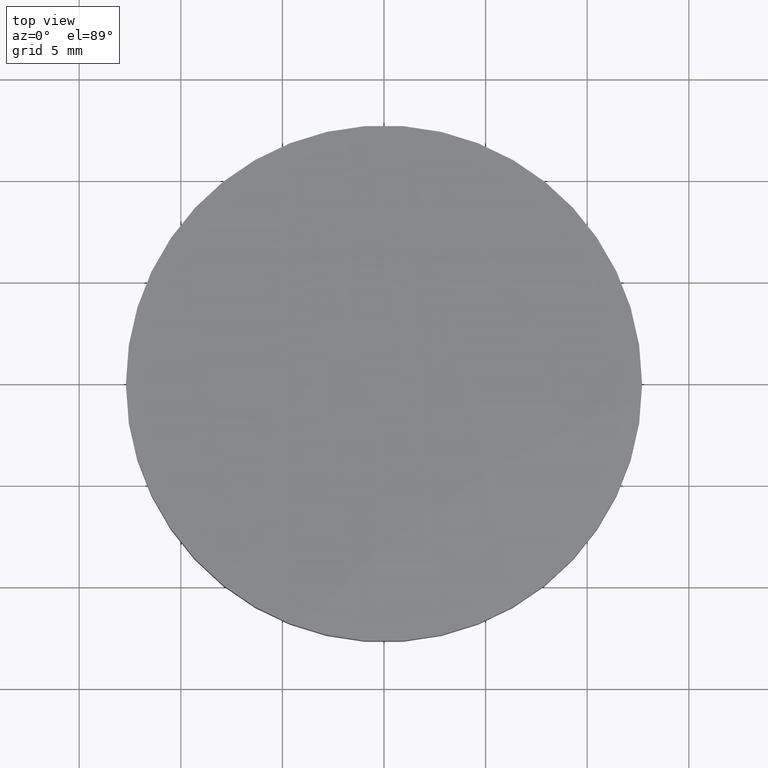
[diagram: clean part render]
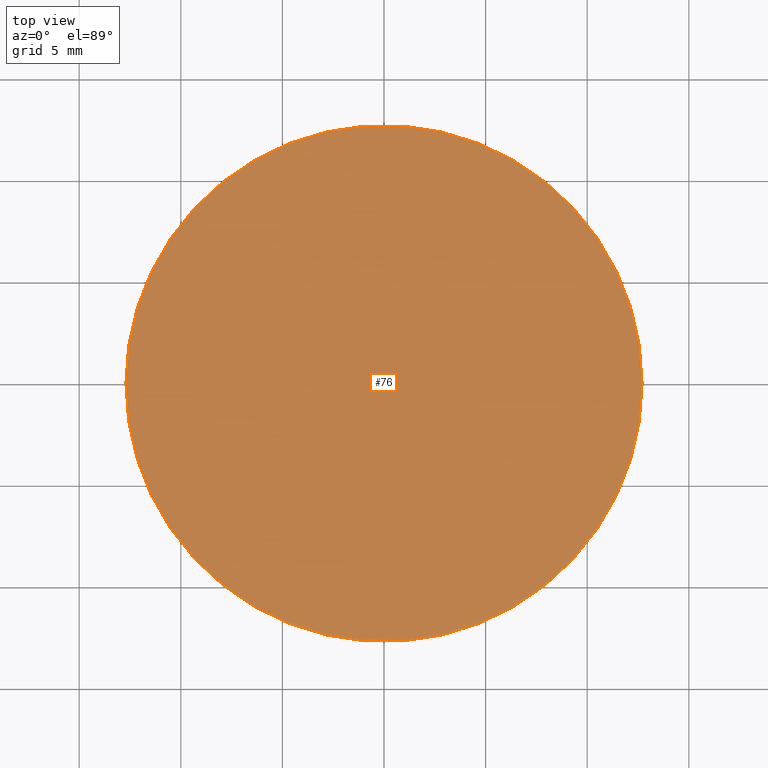
[diagram: same view with one face highlighted and labeled with its STEP entity id]
A machine part, top view. The second image highlights one B-rep face of the part: STEP entity #76.
In plain terms, the highlighted planar face has unit normal (0, 0, 1).
Its self-contained STEP definition (entity closure, byte-faithful):
#5 = DIRECTION ( 'NONE',  ( 0.0000000000000000000, 0.0000000000000000000, 1.000000000000000000 ) ) ;
#16 = CARTESIAN_POINT ( 'NONE',  ( -12.69999999999999900, 0.0000000000000000000, 3.000000000000000000 ) ) ;
#19 = ORIENTED_EDGE ( 'NONE', *, *, #45, .T. ) ;
#21 = AXIS2_PLACEMENT_3D ( 'NONE', #124, #49, #113 ) ;
#22 = CIRCLE ( 'NONE', #29, 12.69999999999999900 ) ;
#26 = DIRECTION ( 'NONE',  ( 0.0000000000000000000, 0.0000000000000000000, 1.000000000000000000 ) ) ;
#29 = AXIS2_PLACEMENT_3D ( 'NONE', #103, #26, #93 ) ;
#39 = VERTEX_POINT ( 'NONE', #16 ) ;
#43 = EDGE_LOOP ( 'NONE', ( #19, #98 ) ) ;
#45 = EDGE_CURVE ( 'NONE', #39, #66, #22, .T. ) ;
#49 = DIRECTION ( 'NONE',  ( 0.0000000000000000000, 0.0000000000000000000, 1.000000000000000000 ) ) ;
#51 = CARTESIAN_POINT ( 'NONE',  ( 0.0000000000000000000, 0.0000000000000000000, 3.000000000000000000 ) ) ;
#56 = AXIS2_PLACEMENT_3D ( 'NONE', #51, #5, #72 ) ;
#57 = EDGE_CURVE ( 'NONE', #66, #39, #99, .T. ) ;
#65 = FACE_OUTER_BOUND ( 'NONE', #43, .T. ) ;
#66 = VERTEX_POINT ( 'NONE', #73 ) ;
#72 = DIRECTION ( 'NONE',  ( 1.000000000000000000, 0.0000000000000000000, -0.0000000000000000000 ) ) ;
#73 = CARTESIAN_POINT ( 'NONE',  ( 12.69999999999999900, 1.555301434917138400E-015, 3.000000000000000000 ) ) ;
#76 = ADVANCED_FACE ( 'NONE', ( #65 ), #83, .T. ) ;
#83 = PLANE ( 'NONE',  #56 ) ;
#93 = DIRECTION ( 'NONE',  ( 1.000000000000000000, 0.0000000000000000000, 0.0000000000000000000 ) ) ;
#98 = ORIENTED_EDGE ( 'NONE', *, *, #57, .T. ) ;
#99 = CIRCLE ( 'NONE', #21, 12.69999999999999900 ) ;
#103 = CARTESIAN_POINT ( 'NONE',  ( 0.0000000000000000000, 0.0000000000000000000, 3.000000000000000000 ) ) ;
#113 = DIRECTION ( 'NONE',  ( 1.000000000000000000, 0.0000000000000000000, 0.0000000000000000000 ) ) ;
#124 = CARTESIAN_POINT ( 'NONE',  ( 0.0000000000000000000, 0.0000000000000000000, 3.000000000000000000 ) ) ;